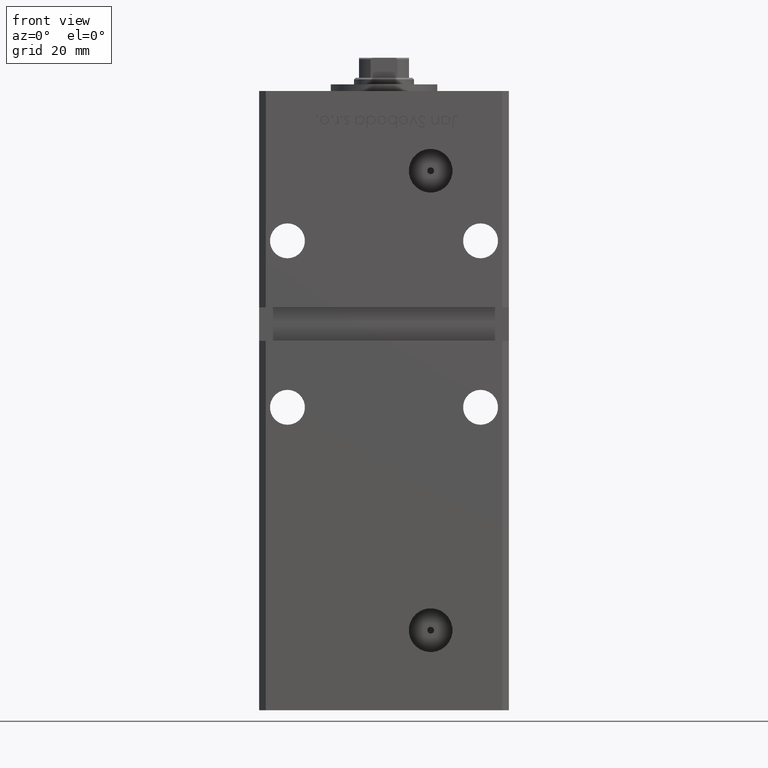
[diagram: clean part render]
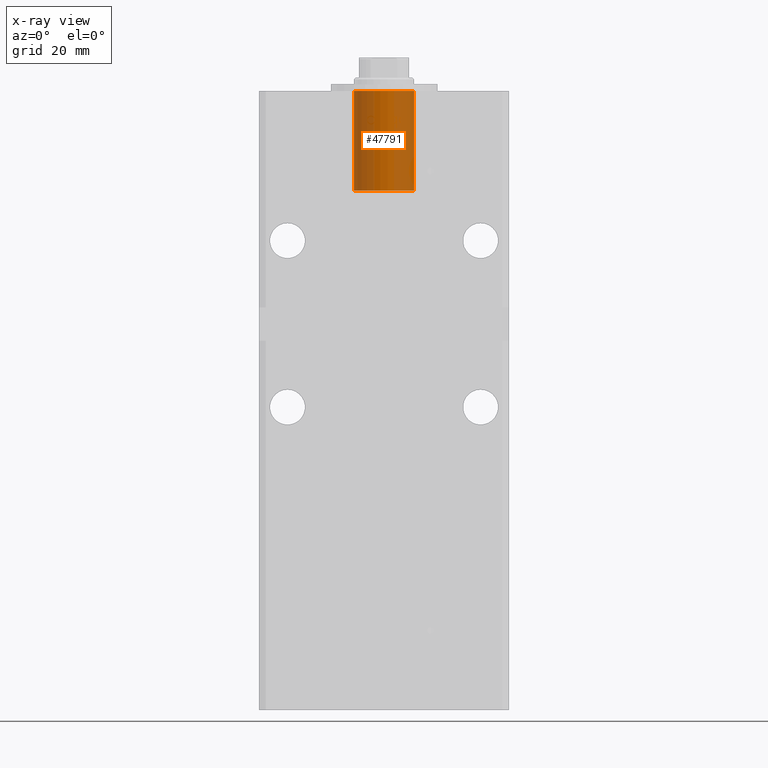
[diagram: x-ray — body ghosted, one internal face saturated and labeled with its STEP entity id]
A machine part, front view, then the same camera in x-ray: the body is ghosted and one INTERNAL B-rep face — a face not visible from any outside direction — is saturated and labeled: STEP entity #47791.
In plain terms, the highlighted cylindrical surface (edge-blend (fillet) strip) has radius 9 mm, axis along (0, 0, 1).
Its self-contained STEP definition (entity closure, byte-faithful):
#437 = CARTESIAN_POINT ( 'NONE',  ( -8.999999999999996447, -5.836711784674611255E-15, 0.000000000000000000 ) ) ;
#4637 = VERTEX_POINT ( 'NONE', #44669 ) ;
#8740 = DIRECTION ( 'NONE',  ( 0.000000000000000000, 0.000000000000000000, 1.000000000000000000 ) ) ;
#9159 = CIRCLE ( 'NONE', #24657, 8.999999999999996447 ) ;
#10947 = VECTOR ( 'NONE', #15899, 1000.000000000000000 ) ;
#13782 = CARTESIAN_POINT ( 'NONE',  ( -8.999999999999996447, -5.836711784674611255E-15, -30.00000000000000000 ) ) ;
#15899 = DIRECTION ( 'NONE',  ( -0.000000000000000000, -0.000000000000000000, 1.000000000000000000 ) ) ;
#16461 = ORIENTED_EDGE ( 'NONE', *, *, #20195, .T. ) ;
#16706 = EDGE_CURVE ( 'NONE', #37461, #20830, #43446, .T. ) ;
#17999 = ORIENTED_EDGE ( 'NONE', *, *, #34626, .F. ) ;
#19214 = VECTOR ( 'NONE', #33687, 1000.000000000000000 ) ;
#20195 = EDGE_CURVE ( 'NONE', #37461, #20753, #22723, .T. ) ;
#20330 = ORIENTED_EDGE ( 'NONE', *, *, #47228, .T. ) ;
#20753 = VERTEX_POINT ( 'NONE', #437 ) ;
#20830 = VERTEX_POINT ( 'NONE', #36754 ) ;
#21336 = LINE ( 'NONE', #45515, #19214 ) ;
#22723 = LINE ( 'NONE', #34817, #10947 ) ;
#24657 = AXIS2_PLACEMENT_3D ( 'NONE', #38739, #26656, #43040 ) ;
#24904 = DIRECTION ( 'NONE',  ( 1.000000000000000000, 0.000000000000000000, 0.000000000000000000 ) ) ;
#26621 = ORIENTED_EDGE ( 'NONE', *, *, #16706, .F. ) ;
#26656 = DIRECTION ( 'NONE',  ( 0.000000000000000000, 0.000000000000000000, 1.000000000000000000 ) ) ;
#27869 = CYLINDRICAL_SURFACE ( 'NONE', #44373, 8.999999999999996447 ) ;
#33687 = DIRECTION ( 'NONE',  ( -0.000000000000000000, -0.000000000000000000, 1.000000000000000000 ) ) ;
#34626 = EDGE_CURVE ( 'NONE', #20830, #4637, #21336, .T. ) ;
#34817 = CARTESIAN_POINT ( 'NONE',  ( -8.999999999999996447, -5.836711784674611255E-15, -30.00000000000000000 ) ) ;
#36199 = FACE_OUTER_BOUND ( 'NONE', #45379, .T. ) ;
#36754 = CARTESIAN_POINT ( 'NONE',  ( 8.999999999999996447, -6.938893903907228378E-15, -30.00000000000000000 ) ) ;
#36976 = CARTESIAN_POINT ( 'NONE',  ( 0.000000000000000000, -6.938893903907228378E-15, -30.00000000000000000 ) ) ;
#37429 = AXIS2_PLACEMENT_3D ( 'NONE', #36976, #8740, #24904 ) ;
#37461 = VERTEX_POINT ( 'NONE', #13782 ) ;
#38739 = CARTESIAN_POINT ( 'NONE',  ( 0.000000000000000000, -6.938893903907228378E-15, 0.000000000000000000 ) ) ;
#43040 = DIRECTION ( 'NONE',  ( 1.000000000000000000, 0.000000000000000000, 0.000000000000000000 ) ) ;
#43446 = CIRCLE ( 'NONE', #37429, 8.999999999999996447 ) ;
#44258 = DIRECTION ( 'NONE',  ( 1.000000000000000000, 0.000000000000000000, 0.000000000000000000 ) ) ;
#44373 = AXIS2_PLACEMENT_3D ( 'NONE', #52599, #52338, #44258 ) ;
#44669 = CARTESIAN_POINT ( 'NONE',  ( 8.999999999999996447, -6.938893903907228378E-15, 0.000000000000000000 ) ) ;
#45379 = EDGE_LOOP ( 'NONE', ( #26621, #16461, #20330, #17999 ) ) ;
#45515 = CARTESIAN_POINT ( 'NONE',  ( 8.999999999999996447, -6.938893903907228378E-15, -30.00000000000000000 ) ) ;
#47228 = EDGE_CURVE ( 'NONE', #20753, #4637, #9159, .T. ) ;
#47791 = ADVANCED_FACE ( 'NONE', ( #36199 ), #27869, .F. ) ;
#52338 = DIRECTION ( 'NONE',  ( -0.000000000000000000, -0.000000000000000000, 1.000000000000000000 ) ) ;
#52599 = CARTESIAN_POINT ( 'NONE',  ( 0.000000000000000000, -6.938893903907228378E-15, -30.00000000000000000 ) ) ;